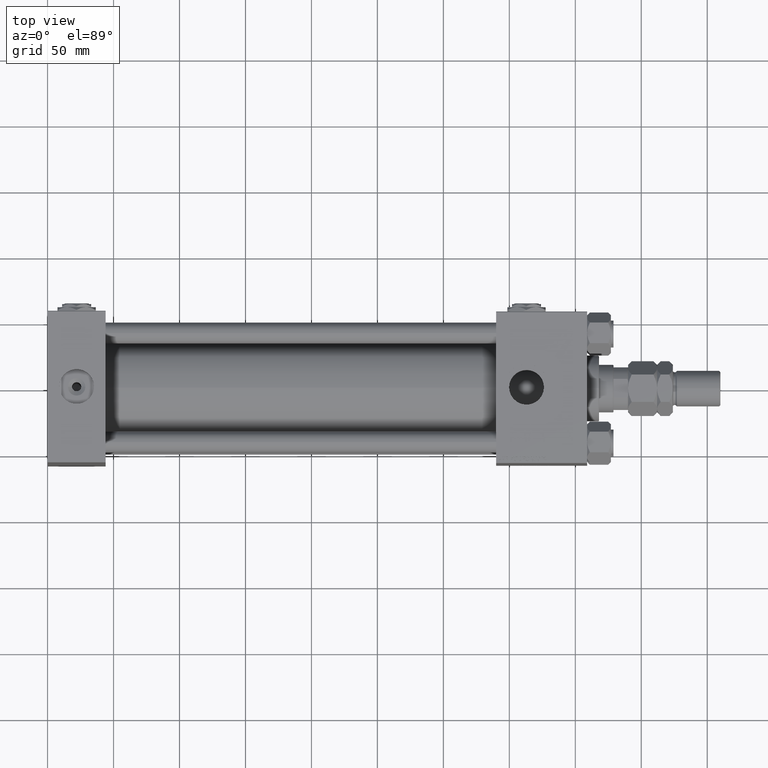
[diagram: clean part render]
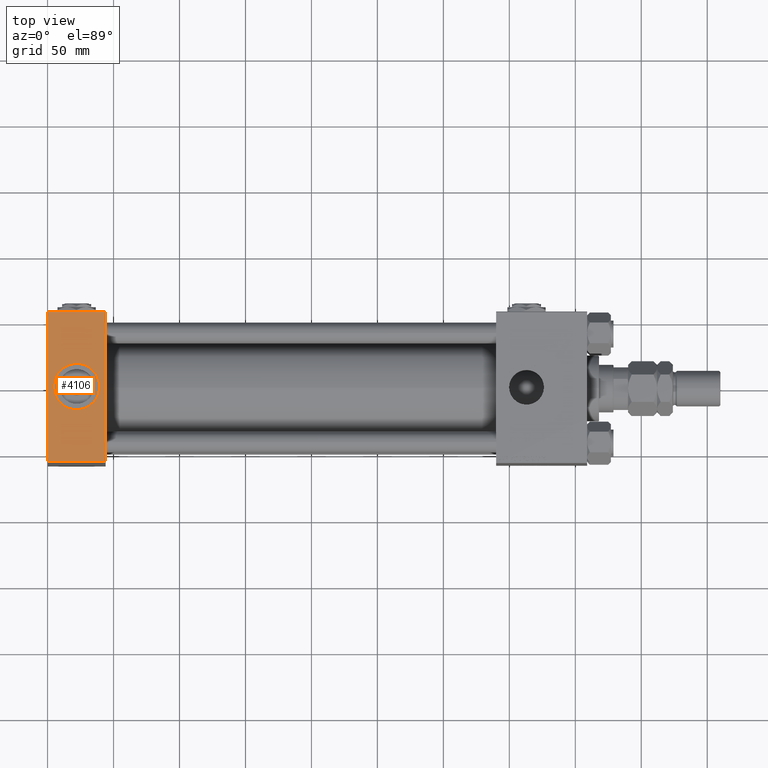
[diagram: same view with one face highlighted and labeled with its STEP entity id]
A machine part, top view. The second image highlights one B-rep face of the part: STEP entity #4106.
In plain terms, the highlighted planar face has unit normal (0, 0, -1).
Its self-contained STEP definition (entity closure, byte-faithful):
#374 = DIRECTION ( 'NONE',  ( 0.000000000000000000, 1.206764157201257291E-16, -1.000000000000000000 ) ) ;
#3598 = ORIENTED_EDGE ( 'NONE', *, *, #49669, .T. ) ;
#4106 = ADVANCED_FACE ( 'NONE', ( #32714, #53778 ), #16271, .F. ) ;
#5419 = EDGE_CURVE ( 'NONE', #5929, #34995, #23817, .T. ) ;
#5929 = VERTEX_POINT ( 'NONE', #40116 ) ;
#6028 = CARTESIAN_POINT ( 'NONE',  ( 0.000000000000000000, 57.50000000000000000, 90.00000000000000000 ) ) ;
#6560 = CIRCLE ( 'NONE', #14430, 17.50000000000000000 ) ;
#7077 = ORIENTED_EDGE ( 'NONE', *, *, #20817, .F. ) ;
#7926 = DIRECTION ( 'NONE',  ( 1.000000000000000000, 0.000000000000000000, 0.000000000000000000 ) ) ;
#9321 = DIRECTION ( 'NONE',  ( 1.000000000000000000, 0.000000000000000000, 0.000000000000000000 ) ) ;
#12563 = EDGE_LOOP ( 'NONE', ( #16459, #7077 ) ) ;
#13238 = LINE ( 'NONE', #47143, #23465 ) ;
#13427 = CARTESIAN_POINT ( 'NONE',  ( 22.00000000000000000, -1.259560089078812060E-14, 89.99999999999998579 ) ) ;
#13490 = ORIENTED_EDGE ( 'NONE', *, *, #50112, .T. ) ;
#14149 = CARTESIAN_POINT ( 'NONE',  ( 44.00000000000000000, 57.50000000000000000, 90.00000000000000000 ) ) ;
#14430 = AXIS2_PLACEMENT_3D ( 'NONE', #13427, #46819, #9321 ) ;
#16271 = PLANE ( 'NONE',  #49626 ) ;
#16459 = ORIENTED_EDGE ( 'NONE', *, *, #43055, .F. ) ;
#17340 = DIRECTION ( 'NONE',  ( 1.000000000000000000, 0.000000000000000000, 0.000000000000000000 ) ) ;
#18764 = CARTESIAN_POINT ( 'NONE',  ( 4.499999999999997335, -1.045246899228025235E-14, 89.99999999999998579 ) ) ;
#19169 = ORIENTED_EDGE ( 'NONE', *, *, #36630, .F. ) ;
#20817 = EDGE_CURVE ( 'NONE', #23103, #25660, #49149, .T. ) ;
#22641 = DIRECTION ( 'NONE',  ( 0.000000000000000000, -1.000000000000000000, -1.206764157201257291E-16 ) ) ;
#23103 = VERTEX_POINT ( 'NONE', #18764 ) ;
#23465 = VECTOR ( 'NONE', #17340, 1000.000000000000000 ) ;
#23817 = LINE ( 'NONE', #27653, #35562 ) ;
#25551 = AXIS2_PLACEMENT_3D ( 'NONE', #45419, #53094, #7926 ) ;
#25660 = VERTEX_POINT ( 'NONE', #35901 ) ;
#26664 = VERTEX_POINT ( 'NONE', #47294 ) ;
#27653 = CARTESIAN_POINT ( 'NONE',  ( 0.000000000000000000, 57.00000000000000000, 90.00000000000000000 ) ) ;
#32124 = CARTESIAN_POINT ( 'NONE',  ( 0.000000000000000000, 57.00000000000000000, 90.00000000000000000 ) ) ;
#32714 = FACE_BOUND ( 'NONE', #12563, .T. ) ;
#32981 = CARTESIAN_POINT ( 'NONE',  ( 44.00000000000000000, 57.50000000000000000, 90.00000000000000000 ) ) ;
#34995 = VERTEX_POINT ( 'NONE', #32124 ) ;
#35562 = VECTOR ( 'NONE', #44896, 1000.000000000000000 ) ;
#35901 = CARTESIAN_POINT ( 'NONE',  ( 39.50000000000000000, -1.259560089078812060E-14, 89.99999999999998579 ) ) ;
#36198 = CARTESIAN_POINT ( 'NONE',  ( 0.000000000000000000, -57.00000000000001421, 89.99999999999998579 ) ) ;
#36607 = DIRECTION ( 'NONE',  ( 0.000000000000000000, -1.000000000000000000, -1.206764157201257291E-16 ) ) ;
#36630 = EDGE_CURVE ( 'NONE', #5929, #26664, #51654, .T. ) ;
#38902 = ORIENTED_EDGE ( 'NONE', *, *, #5419, .T. ) ;
#40116 = CARTESIAN_POINT ( 'NONE',  ( 44.00000000000000000, 57.00000000000000000, 90.00000000000000000 ) ) ;
#42308 = VECTOR ( 'NONE', #22641, 1000.000000000000000 ) ;
#43055 = EDGE_CURVE ( 'NONE', #25660, #23103, #6560, .T. ) ;
#43965 = EDGE_LOOP ( 'NONE', ( #13490, #3598, #19169, #38902 ) ) ;
#44896 = DIRECTION ( 'NONE',  ( -1.000000000000000000, 0.000000000000000000, 0.000000000000000000 ) ) ;
#45419 = CARTESIAN_POINT ( 'NONE',  ( 22.00000000000000000, -1.259560089078812060E-14, 89.99999999999998579 ) ) ;
#46819 = DIRECTION ( 'NONE',  ( 0.000000000000000000, 0.000000000000000000, 1.000000000000000000 ) ) ;
#47049 = VECTOR ( 'NONE', #36607, 1000.000000000000000 ) ;
#47143 = CARTESIAN_POINT ( 'NONE',  ( 44.00000000000000000, -57.00000000000001421, 89.99999999999998579 ) ) ;
#47294 = CARTESIAN_POINT ( 'NONE',  ( 44.00000000000000000, -57.00000000000001421, 89.99999999999998579 ) ) ;
#47885 = LINE ( 'NONE', #6028, #47049 ) ;
#48258 = VERTEX_POINT ( 'NONE', #36198 ) ;
#49149 = CIRCLE ( 'NONE', #25551, 17.50000000000000000 ) ;
#49626 = AXIS2_PLACEMENT_3D ( 'NONE', #32981, #374, #50750 ) ;
#49669 = EDGE_CURVE ( 'NONE', #48258, #26664, #13238, .T. ) ;
#50112 = EDGE_CURVE ( 'NONE', #34995, #48258, #47885, .T. ) ;
#50750 = DIRECTION ( 'NONE',  ( 0.000000000000000000, 1.000000000000000000, 1.206764157201257291E-16 ) ) ;
#51654 = LINE ( 'NONE', #14149, #42308 ) ;
#53094 = DIRECTION ( 'NONE',  ( 0.000000000000000000, 0.000000000000000000, 1.000000000000000000 ) ) ;
#53778 = FACE_OUTER_BOUND ( 'NONE', #43965, .T. ) ;